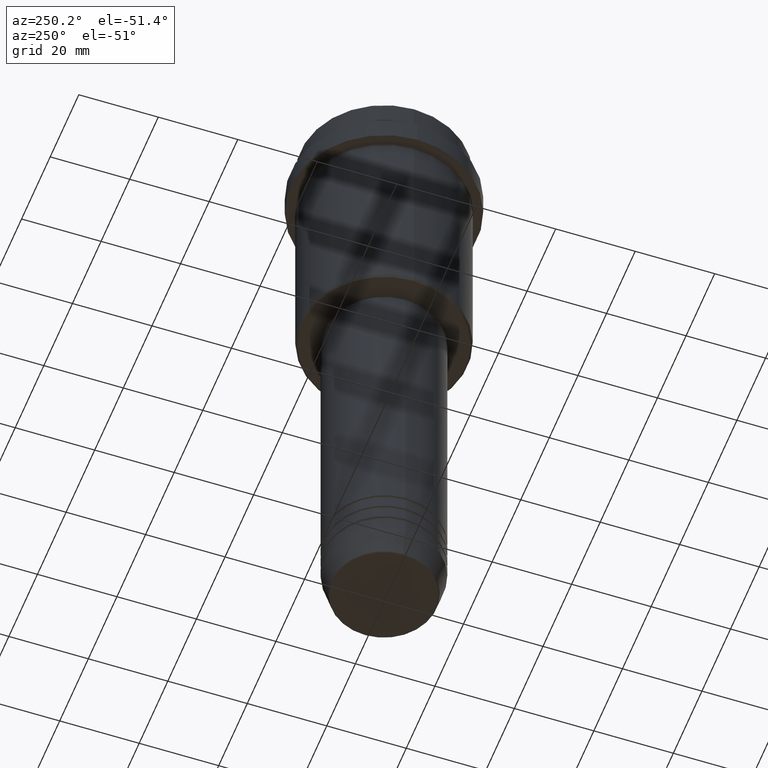
[diagram: clean part render]
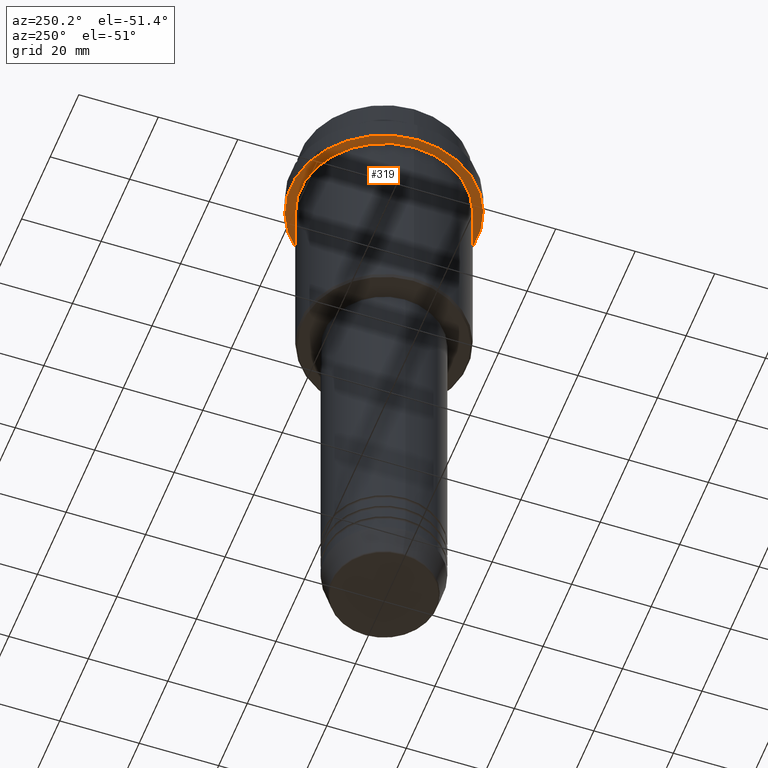
[diagram: same view with one face highlighted and labeled with its STEP entity id]
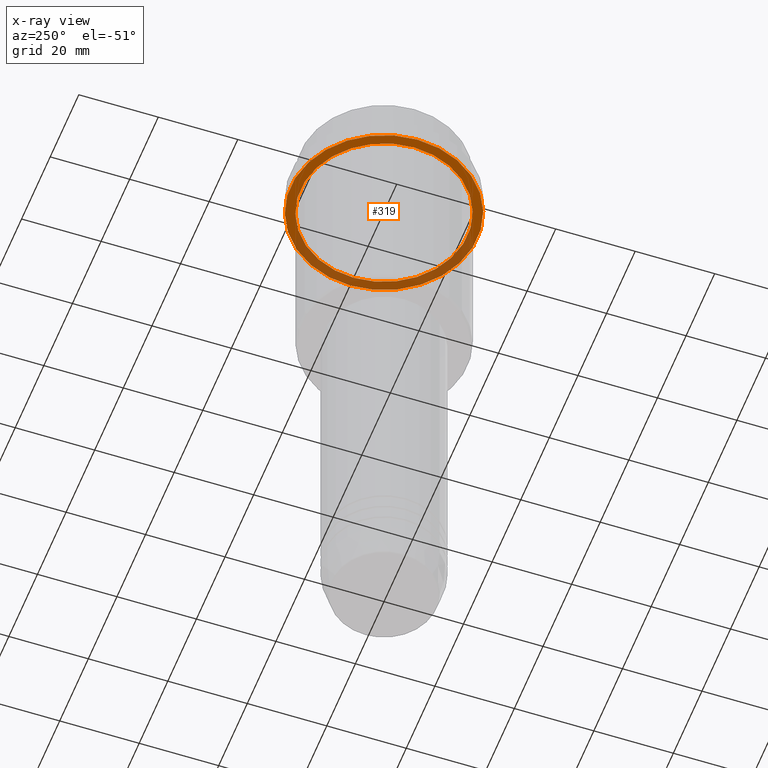
[diagram: x-ray of the same camera — body ghosted, the highlighted face saturated]
A machine part, auxiliary view. The second image highlights one B-rep face of the part: STEP entity #319.
The next image is the same camera in x-ray: the body ghosted, the highlighted face saturated — about 39% of this face is hidden behind the body in this view.
In plain terms, the highlighted planar face has unit normal (0, 0, -1).
Its self-contained STEP definition (entity closure, byte-faithful):
#38 = VERTEX_POINT ( 'NONE', #1355 ) ;
#107 = AXIS2_PLACEMENT_3D ( 'NONE', #230, #432, #339 ) ;
#131 = CIRCLE ( 'NONE', #1293, 23.50000000000000355 ) ;
#134 = DIRECTION ( 'NONE',  ( -0.000000000000000000, -0.000000000000000000, 1.000000000000000000 ) ) ;
#139 = CARTESIAN_POINT ( 'NONE',  ( 0.000000000000000000, 0.000000000000000000, -15.00000000000000000 ) ) ;
#197 = CARTESIAN_POINT ( 'NONE',  ( 20.99999999999999289, 2.571758278209440872E-15, -15.00000000000000178 ) ) ;
#219 = CARTESIAN_POINT ( 'NONE',  ( -20.99999999999999289, 0.000000000000000000, -15.00000000000000178 ) ) ;
#229 = FACE_OUTER_BOUND ( 'NONE', #1409, .T. ) ;
#230 = CARTESIAN_POINT ( 'NONE',  ( 0.000000000000000000, 0.000000000000000000, -15.00000000000000178 ) ) ;
#231 = CARTESIAN_POINT ( 'NONE',  ( 0.000000000000000000, 0.000000000000000000, -15.00000000000000178 ) ) ;
#240 = DIRECTION ( 'NONE',  ( -0.000000000000000000, -0.000000000000000000, 1.000000000000000000 ) ) ;
#247 = DIRECTION ( 'NONE',  ( 1.000000000000000000, 0.000000000000000000, 0.000000000000000000 ) ) ;
#319 = ADVANCED_FACE ( 'NONE', ( #647, #229 ), #440, .T. ) ;
#339 = DIRECTION ( 'NONE',  ( -1.000000000000000000, 0.000000000000000000, 0.000000000000000000 ) ) ;
#387 = DIRECTION ( 'NONE',  ( 1.000000000000000000, 0.000000000000000000, 0.000000000000000000 ) ) ;
#399 = EDGE_CURVE ( 'NONE', #1097, #1032, #643, .T. ) ;
#411 = EDGE_LOOP ( 'NONE', ( #1130, #1214 ) ) ;
#432 = DIRECTION ( 'NONE',  ( -0.000000000000000000, -0.000000000000000000, 1.000000000000000000 ) ) ;
#440 = PLANE ( 'NONE',  #618 ) ;
#459 = DIRECTION ( 'NONE',  ( -0.000000000000000000, -0.000000000000000000, 1.000000000000000000 ) ) ;
#490 = VERTEX_POINT ( 'NONE', #1244 ) ;
#522 = AXIS2_PLACEMENT_3D ( 'NONE', #139, #459, #387 ) ;
#618 = AXIS2_PLACEMENT_3D ( 'NONE', #878, #1332, #1341 ) ;
#643 = CIRCLE ( 'NONE', #1294, 20.99999999999999289 ) ;
#647 = FACE_BOUND ( 'NONE', #411, .T. ) ;
#675 = DIRECTION ( 'NONE',  ( -1.000000000000000000, 0.000000000000000000, 0.000000000000000000 ) ) ;
#844 = ORIENTED_EDGE ( 'NONE', *, *, #1307, .F. ) ;
#878 = CARTESIAN_POINT ( 'NONE',  ( 0.000000000000000000, 23.50000000000000355, -15.00000000000000178 ) ) ;
#937 = CIRCLE ( 'NONE', #522, 23.50000000000000355 ) ;
#1022 = CARTESIAN_POINT ( 'NONE',  ( 0.000000000000000000, 0.000000000000000000, -15.00000000000000000 ) ) ;
#1032 = VERTEX_POINT ( 'NONE', #197 ) ;
#1059 = EDGE_CURVE ( 'NONE', #1032, #1097, #1342, .T. ) ;
#1097 = VERTEX_POINT ( 'NONE', #219 ) ;
#1118 = ORIENTED_EDGE ( 'NONE', *, *, #1212, .F. ) ;
#1130 = ORIENTED_EDGE ( 'NONE', *, *, #399, .T. ) ;
#1212 = EDGE_CURVE ( 'NONE', #490, #38, #937, .T. ) ;
#1214 = ORIENTED_EDGE ( 'NONE', *, *, #1059, .T. ) ;
#1244 = CARTESIAN_POINT ( 'NONE',  ( 23.50000000000000355, 0.000000000000000000, -15.00000000000000000 ) ) ;
#1293 = AXIS2_PLACEMENT_3D ( 'NONE', #1022, #134, #247 ) ;
#1294 = AXIS2_PLACEMENT_3D ( 'NONE', #231, #240, #675 ) ;
#1307 = EDGE_CURVE ( 'NONE', #38, #490, #131, .T. ) ;
#1332 = DIRECTION ( 'NONE',  ( 0.000000000000000000, 0.000000000000000000, -1.000000000000000000 ) ) ;
#1341 = DIRECTION ( 'NONE',  ( -1.000000000000000000, 0.000000000000000000, -0.000000000000000000 ) ) ;
#1342 = CIRCLE ( 'NONE', #107, 20.99999999999999289 ) ;
#1355 = CARTESIAN_POINT ( 'NONE',  ( -23.50000000000000711, 2.877919977996281109E-15, -15.00000000000000000 ) ) ;
#1409 = EDGE_LOOP ( 'NONE', ( #1118, #844 ) ) ;